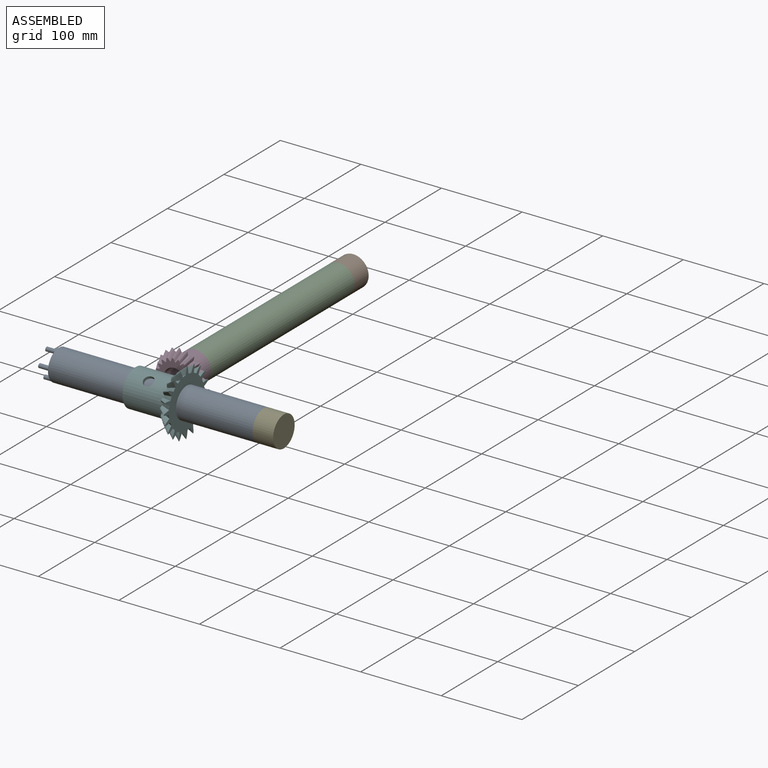
[diagram: assembled view]
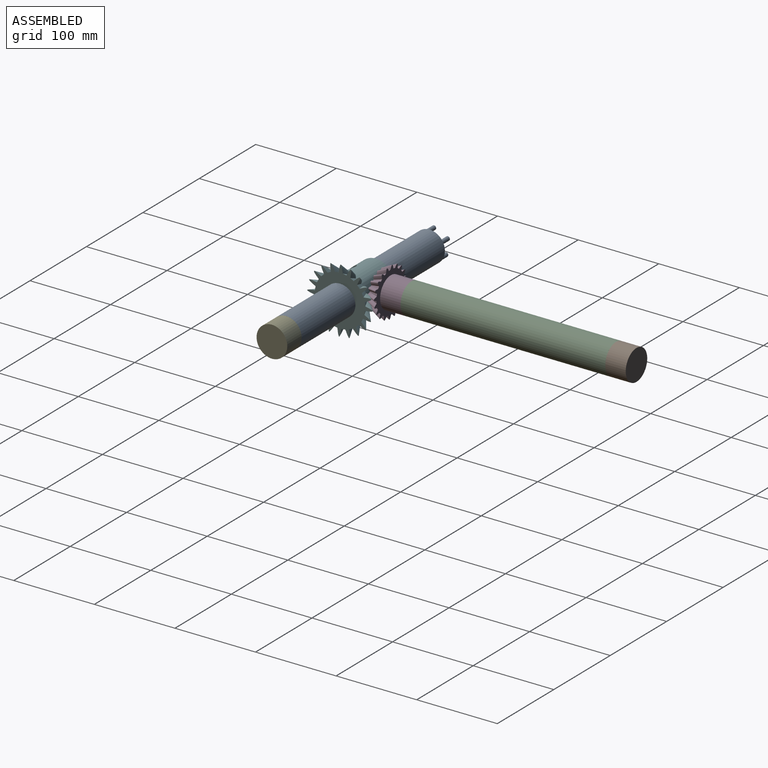
[diagram: assembled view, second angle]
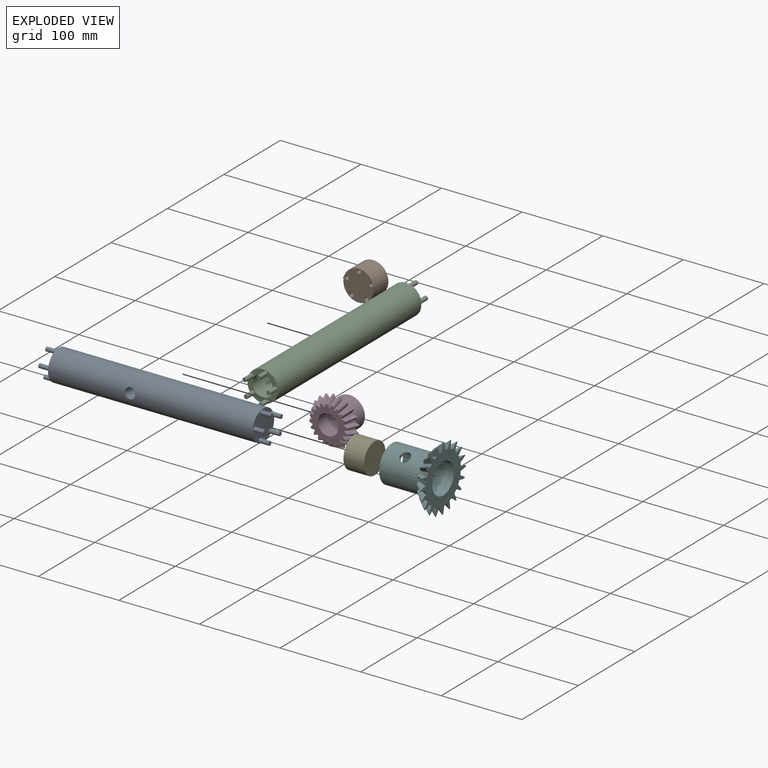
[diagram: exploded view]
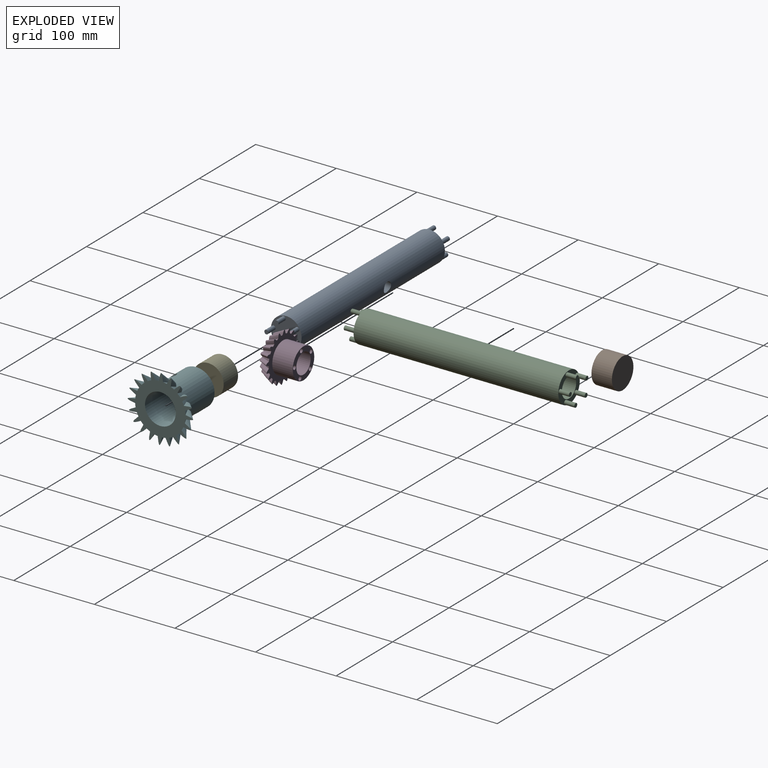
[diagram: exploded view, second angle]
ASSEMBLY  parts=6 mates=4
PART A: 24 faces, bbox 279.4x38.1x38.1 mm
  f0: cylinder r=19.05mm len=254mm, axis (-1,0,0), area 30145.4mm2, adj f1,f2,f23
  f1: plane 38.1x38.1mm, normal (1,0,0), area 1038.8mm2, adj f0,f3,f5,f7,f9,f11
  f2: plane 38.1x38.1mm, normal (-1,0,0), area 1038.8mm2, adj f0,f13,f15,f17,f19,f21
  f3: cylinder r=2.54mm len=12.7mm, axis (-1,0,0), area 202.7mm2, adj f1,f4
  f4: plane 5.08x5.08mm, normal (1,0,0), area 20.3mm2, adj f3
  f5: cylinder r=2.54mm len=12.7mm, axis (-1,0,0), area 202.7mm2, adj f1,f6
  f6: plane 5.08x5.08mm, normal (1,0,0), area 20.3mm2, adj f5
  f7: cylinder r=2.54mm len=12.7mm, axis (-1,0,0), area 202.7mm2, adj f1,f8
  f8: plane 5.08x5.08mm, normal (1,0,0), area 20.3mm2, adj f7
  f9: cylinder r=2.54mm len=12.7mm, axis (-1,0,0), area 202.7mm2, adj f1,f10
  f10: plane 5.08x5.08mm, normal (1,0,0), area 20.3mm2, adj f9
  f11: cylinder r=2.54mm len=12.7mm, axis (-1,0,0), area 202.7mm2, adj f1,f12
  f12: plane 5.08x5.08mm, normal (1,0,0), area 20.3mm2, adj f11
  f13: cylinder r=2.54mm len=12.7mm, axis (1,0,0), area 202.7mm2, adj f2,f14
  f14: plane 5.08x5.08mm, normal (-1,0,0), area 20.3mm2, adj f13
  f15: cylinder r=2.54mm len=12.7mm, axis (1,0,0), area 202.7mm2, adj f2,f16
  f16: plane 5.08x5.08mm, normal (-1,0,0), area 20.3mm2, adj f15
  f17: cylinder r=2.54mm len=12.7mm, axis (1,0,0), area 202.7mm2, adj f2,f18
  f18: plane 5.08x5.08mm, normal (-1,0,0), area 20.3mm2, adj f17
  f19: cylinder r=2.54mm len=12.7mm, axis (1,0,0), area 202.7mm2, adj f2,f20
  f20: plane 5.08x5.08mm, normal (-1,0,0), area 20.3mm2, adj f19
  f21: cylinder r=2.54mm len=12.7mm, axis (1,0,0), area 202.7mm2, adj f2,f22
  f22: plane 5.08x5.08mm, normal (-1,0,0), area 20.3mm2, adj f21
  f23: cylinder r=6.35mm len=38.1mm, axis (0,0,1), area 1476.9mm2, adj f0
PART B: 13 faces, bbox 25.4x38.1x38.1 mm
  f0: cylinder r=2.54mm len=12.7mm, axis (-1,0,0), area 202.7mm2, adj f6,f7
  f1: cylinder r=2.54mm len=12.7mm, axis (-1,0,0), area 202.7mm2, adj f6,f8
  f2: cylinder r=2.54mm len=12.7mm, axis (-1,0,0), area 202.7mm2, adj f6,f9
  f3: cylinder r=2.54mm len=12.7mm, axis (-1,0,0), area 202.7mm2, adj f6,f10
  f4: cylinder r=2.54mm len=12.7mm, axis (-1,0,0), area 202.7mm2, adj f6,f11
  f5: cylinder r=19.05mm len=38.1mm, axis (-1,0,0), area 3040.2mm2, adj f6,f12
  f6: plane 38.1x38.1mm, normal (-1,0,0), area 1038.8mm2, adj f0,f1,f2,f3,f4,f5
  f7: plane 5.08x5.08mm, normal (-1,0,0), area 20.3mm2, adj f0
  f8: plane 5.08x5.08mm, normal (-1,0,0), area 20.3mm2, adj f1
  f9: plane 5.08x5.08mm, normal (-1,0,0), area 20.3mm2, adj f2
  f10: plane 5.08x5.08mm, normal (-1,0,0), area 20.3mm2, adj f3
  f11: plane 5.08x5.08mm, normal (-1,0,0), area 20.3mm2, adj f4
  f12: plane 38.1x38.1mm, normal (1,0,0), area 1140.1mm2, adj f5
PART C: 24 faces, bbox 38.1x279.4x38.1 mm
  f0: cylinder r=12.7mm len=254mm, axis (0,1,0), area 20268.3mm2, adj f2,f3
  f1: cylinder r=19.05mm len=254mm, axis (0,1,0), area 30402.4mm2, adj f2,f3
  f2: plane 38.1x38.1mm, normal (0,-1,0), area 532mm2, adj f0,f1,f14,f16,f18,f20,f22
  f3: plane 38.1x38.1mm, normal (0,1,0), area 532mm2, adj f0,f1,f4,f6,f8,f10,f12
  f4: cylinder r=2.54mm len=12.7mm, axis (0,-1,0), area 202.7mm2, adj f3,f5
  f5: plane 5.08x5.08mm, normal (0,1,0), area 20.3mm2, adj f4
  f6: cylinder r=2.54mm len=12.7mm, axis (0,-1,0), area 202.7mm2, adj f3,f7
  f7: plane 5.08x5.08mm, normal (0,1,0), area 20.3mm2, adj f6
  f8: cylinder r=2.54mm len=12.7mm, axis (0,-1,0), area 202.7mm2, adj f3,f9
  f9: plane 5.08x5.08mm, normal (0,1,0), area 20.3mm2, adj f8
  f10: cylinder r=2.54mm len=12.7mm, axis (0,-1,0), area 202.7mm2, adj f3,f11
  f11: plane 5.08x5.08mm, normal (0,1,0), area 20.3mm2, adj f10
  f12: cylinder r=2.54mm len=12.7mm, axis (0,-1,0), area 202.7mm2, adj f3,f13
  f13: plane 5.08x5.08mm, normal (0,1,0), area 20.3mm2, adj f12
  f14: cylinder r=2.54mm len=12.7mm, axis (0,1,0), area 202.7mm2, adj f2,f15
  f15: plane 5.08x5.08mm, normal (0,-1,0), area 20.3mm2, adj f14
  f16: cylinder r=2.54mm len=12.7mm, axis (0,1,0), area 202.7mm2, adj f2,f17
  f17: plane 5.08x5.08mm, normal (0,-1,0), area 20.3mm2, adj f16
  f18: cylinder r=2.54mm len=12.7mm, axis (0,1,0), area 202.7mm2, adj f2,f19
  f19: plane 5.08x5.08mm, normal (0,-1,0), area 20.3mm2, adj f18
  f20: cylinder r=2.54mm len=12.7mm, axis (0,1,0), area 202.7mm2, adj f2,f21
  f21: plane 5.08x5.08mm, normal (0,-1,0), area 20.3mm2, adj f20
  f22: cylinder r=2.54mm len=12.7mm, axis (0,1,0), area 202.7mm2, adj f2,f23
  f23: plane 5.08x5.08mm, normal (0,-1,0), area 20.3mm2, adj f22
PART D: 55 faces, bbox 63.5x38.1x63.5 mm
  f0: cone r=25.4mm half-angle=25deg, axis (0,1,0), area 26.6mm2, adj f32,f33,f34,f53
  f1: cone r=25.4mm half-angle=25deg, axis (0,1,0), area 26.6mm2, adj f32,f33,f52,f53
  f2: cone r=25.4mm half-angle=25deg, axis (0,1,0), area 26.6mm2, adj f32,f33,f51,f52
  f3: cone r=25.4mm half-angle=25deg, axis (0,1,0), area 26.6mm2, adj f32,f33,f50,f51
  f4: cone r=25.4mm half-angle=25deg, axis (0,1,0), area 26.6mm2, adj f32,f33,f49,f50
  f5: cone r=25.4mm half-angle=25deg, axis (0,1,0), area 26.6mm2, adj f32,f33,f48,f49
  f6: cone r=25.4mm half-angle=25deg, axis (0,1,0), area 26.6mm2, adj f32,f33,f47,f48
  f7: cone r=25.4mm half-angle=25deg, axis (0,1,0), area 26.6mm2, adj f32,f33,f46,f47
  f8: cone r=25.4mm half-angle=25deg, axis (0,1,0), area 26.6mm2, adj f32,f33,f45,f46
  f9: cone r=25.4mm half-angle=25deg, axis (0,1,0), area 26.6mm2, adj f32,f33,f44,f45
  f10: cone r=25.4mm half-angle=25deg, axis (0,1,0), area 26.6mm2, adj f32,f33,f43,f44
  f11: cone r=25.4mm half-angle=25deg, axis (0,1,0), area 26.6mm2, adj f32,f33,f42,f43
  f12: cone r=25.4mm half-angle=25deg, axis (0,1,0), area 26.6mm2, adj f32,f33,f41,f42
  f13: cone r=25.4mm half-angle=25deg, axis (0,1,0), area 26.6mm2, adj f32,f33,f40,f41
  f14: cone r=25.4mm half-angle=25deg, axis (0,1,0), area 26.6mm2, adj f32,f33,f39,f40
  f15: cone r=25.4mm half-angle=25deg, axis (0,1,0), area 26.6mm2, adj f32,f33,f38,f39
  f16: cone r=25.4mm half-angle=25deg, axis (0,1,0), area 26.6mm2, adj f32,f33,f37,f38
  f17: cone r=25.4mm half-angle=25deg, axis (0,1,0), area 26.6mm2, adj f32,f33,f36,f37
  f18: cone r=25.4mm half-angle=25deg, axis (0,1,0), area 26.6mm2, adj f32,f33,f35,f36
  f19: cone r=25.4mm half-angle=25deg, axis (0,1,0), area 26.6mm2, adj f32,f33,f34,f35
  f20: cylinder r=19.05mm len=38.1mm, axis (0,1,0), area 3040.2mm2, adj f21,f33
  f21: plane 38.1x38.1mm, normal (0,1,0), area 532mm2, adj f20,f22,f24,f26,f28,f30,f54
  f22: cylinder r=2.54mm len=12.7mm, axis (0,1,0), area 202.7mm2, adj f21,f23
  f23: plane 5.08x5.08mm, normal (0,1,0), area 20.3mm2, adj f22
  f24: cylinder r=2.54mm len=12.7mm, axis (0,1,0), area 202.7mm2, adj f21,f25
  f25: plane 5.08x5.08mm, normal (0,1,0), area 20.3mm2, adj f24
  f26: cylinder r=2.54mm len=12.7mm, axis (0,1,0), area 202.7mm2, adj f21,f27
  f27: plane 5.08x5.08mm, normal (0,1,0), area 20.3mm2, adj f26
  f28: cylinder r=2.54mm len=12.7mm, axis (0,1,0), area 202.7mm2, adj f21,f29
  f29: plane 5.08x5.08mm, normal (0,1,0), area 20.3mm2, adj f28
  f30: cylinder r=2.54mm len=12.7mm, axis (0,1,0), area 202.7mm2, adj f21,f31
  f31: plane 5.08x5.08mm, normal (0,1,0), area 20.3mm2, adj f30
  f32: plane 49.88x49.88mm, normal (0,-1,0), area 950.8mm2, adj f0,f1,f2,f3,f4,f5,f6,f7
  f33: plane 63.52x63.52mm, normal (0,1,0), area 1197.2mm2, adj f0,f1,f2,f3,f4,f5,f6,f7
  f34: bspline ~12.7x12.25mm, area 139.2mm2, adj f0,f19,f32,f33
  f35: bspline ~12.7x12.7mm, area 139.2mm2, adj f18,f19,f32,f33
  f36: bspline ~12.7x11.9mm, area 139.2mm2, adj f17,f18,f32,f33
  f37: bspline ~12.7x11.9mm, area 139.2mm2, adj f16,f17,f32,f33
  f38: bspline ~12.7x12.7mm, area 139.2mm2, adj f15,f16,f32,f33
  f39: bspline ~12.7x12.25mm, area 139.2mm2, adj f14,f15,f32,f33
  f40: bspline ~12.7x12.7mm, area 139.2mm2, adj f13,f14,f32,f33
  f41: bspline ~12.7x11.9mm, area 139.2mm2, adj f12,f13,f32,f33
  f42: bspline ~12.7x11.9mm, area 139.2mm2, adj f11,f12,f32,f33
  f43: bspline ~12.7x12.7mm, area 139.2mm2, adj f10,f11,f32,f33
  f44: bspline ~12.7x12.25mm, area 139.2mm2, adj f9,f10,f32,f33
  f45: bspline ~12.7x12.7mm, area 139.2mm2, adj f8,f9,f32,f33
  f46: bspline ~12.7x11.9mm, area 139.2mm2, adj f7,f8,f32,f33
  f47: bspline ~12.7x11.9mm, area 139.2mm2, adj f6,f7,f32,f33
  f48: bspline ~12.7x12.7mm, area 139.2mm2, adj f5,f6,f32,f33
  f49: bspline ~12.7x12.25mm, area 139.2mm2, adj f4,f5,f32,f33
  f50: bspline ~12.7x12.7mm, area 139.2mm2, adj f3,f4,f32,f33
  f51: bspline ~12.7x11.9mm, area 139.2mm2, adj f2,f3,f32,f33
  f52: bspline ~12.7x11.9mm, area 139.2mm2, adj f1,f2,f32,f33
  f53: bspline ~12.7x12.7mm, area 139.2mm2, adj f0,f1,f32,f33
  f54: cylinder r=12.7mm len=38.1mm, axis (0,-1,0), area 3040.2mm2, adj f21,f32
PART E: same geometry as B
PART F: 47 faces, bbox 63.5x88.4x88.4 mm
  f0: cone r=25.4mm half-angle=25deg, axis (1,0,0), area 53mm2, adj f23,f24,f25,f44
  f1: cone r=25.4mm half-angle=25deg, axis (1,0,0), area 53mm2, adj f23,f24,f43,f44
  f2: cone r=25.4mm half-angle=25deg, axis (1,0,0), area 53mm2, adj f23,f24,f42,f43
  f3: cone r=25.4mm half-angle=25deg, axis (1,0,0), area 53mm2, adj f23,f24,f41,f42
  f4: cone r=25.4mm half-angle=25deg, axis (1,0,0), area 53mm2, adj f23,f24,f40,f41
  f5: cone r=25.4mm half-angle=25deg, axis (1,0,0), area 53mm2, adj f23,f24,f39,f40
  f6: cone r=25.4mm half-angle=25deg, axis (1,0,0), area 53mm2, adj f23,f24,f38,f39
  f7: cone r=25.4mm half-angle=25deg, axis (1,0,0), area 53mm2, adj f23,f24,f37,f38
  f8: cone r=25.4mm half-angle=25deg, axis (1,0,0), area 53mm2, adj f23,f24,f36,f37
  f9: cone r=25.4mm half-angle=25deg, axis (1,0,0), area 53mm2, adj f23,f24,f35,f36
  f10: cone r=25.4mm half-angle=25deg, axis (1,0,0), area 53mm2, adj f23,f24,f34,f35
  f11: cone r=25.4mm half-angle=25deg, axis (1,0,0), area 53mm2, adj f23,f24,f33,f34
  f12: cone r=25.4mm half-angle=25deg, axis (1,0,0), area 53mm2, adj f23,f24,f32,f33
  f13: cone r=25.4mm half-angle=25deg, axis (1,0,0), area 53mm2, adj f23,f24,f31,f32
  f14: cone r=25.4mm half-angle=25deg, axis (1,0,0), area 53mm2, adj f23,f24,f30,f31
  f15: cone r=25.4mm half-angle=25deg, axis (1,0,0), area 53mm2, adj f23,f24,f29,f30
  f16: cone r=25.4mm half-angle=25deg, axis (1,0,0), area 53mm2, adj f23,f24,f28,f29
  f17: cone r=25.4mm half-angle=25deg, axis (1,0,0), area 53mm2, adj f23,f24,f27,f28
  f18: cone r=25.4mm half-angle=25deg, axis (1,0,0), area 53mm2, adj f23,f24,f26,f27
  f19: cone r=25.4mm half-angle=25deg, axis (1,0,0), area 53mm2, adj f23,f24,f25,f26
  f20: cylinder r=19.05mm len=63.5mm, axis (1,0,0), area 7343.6mm2, adj f22,f24,f45,f46
  f21: cylinder r=22.86mm len=50.8mm, axis (1,0,0), area 7040.5mm2, adj f22,f23,f45,f46
  f22: plane 45.72x45.72mm, normal (-1,0,0), area 501.6mm2, adj f20,f21
  f23: plane 61.94x61.94mm, normal (-1,0,0), area 656.9mm2, adj f0,f1,f2,f3,f4,f5,f6,f7
  f24: plane 88.39x88.39mm, normal (1,0,0), area 2574.3mm2, adj f0,f1,f2,f3,f4,f5,f6,f7
  f25: bspline ~18.53x12.7mm, area 199.3mm2, adj f0,f19,f23,f24
  f26: bspline ~18.67x12.7mm, area 199.3mm2, adj f18,f19,f23,f24
  f27: bspline ~16.98x13.63mm, area 199.3mm2, adj f17,f18,f23,f24
  f28: bspline ~16.98x13.63mm, area 199.3mm2, adj f16,f17,f23,f24
  f29: bspline ~18.67x12.7mm, area 199.3mm2, adj f15,f16,f23,f24
  f30: bspline ~18.53x12.7mm, area 199.3mm2, adj f14,f15,f23,f24
  f31: bspline ~18.67x12.7mm, area 199.3mm2, adj f13,f14,f23,f24
  f32: bspline ~16.98x13.63mm, area 199.3mm2, adj f12,f13,f23,f24
  f33: bspline ~16.98x13.63mm, area 199.3mm2, adj f11,f12,f23,f24
  f34: bspline ~18.67x12.7mm, area 199.3mm2, adj f10,f11,f23,f24
  f35: bspline ~18.53x12.7mm, area 199.3mm2, adj f9,f10,f23,f24
  f36: bspline ~18.67x12.7mm, area 199.3mm2, adj f8,f9,f23,f24
  f37: bspline ~16.98x13.63mm, area 199.3mm2, adj f7,f8,f23,f24
  f38: bspline ~16.98x13.63mm, area 199.3mm2, adj f6,f7,f23,f24
  f39: bspline ~18.67x12.7mm, area 199.3mm2, adj f5,f6,f23,f24
  f40: bspline ~18.53x12.7mm, area 199.3mm2, adj f4,f5,f23,f24
  f41: bspline ~18.67x12.7mm, area 199.3mm2, adj f3,f4,f23,f24
  f42: bspline ~16.98x13.63mm, area 199.3mm2, adj f2,f3,f23,f24
  f43: bspline ~16.98x13.63mm, area 199.3mm2, adj f1,f2,f23,f24
  f44: bspline ~18.67x12.7mm, area 199.3mm2, adj f0,f1,f23,f24
  f45: cylinder r=6.35mm len=12.7mm, axis (0,0,1), area 152mm2, adj f20,f21
  f46: cylinder r=6.35mm len=12.7mm, axis (0,0,1), area 152mm2, adj f20,f21
PLACE A rot(axis=(1,0,0),83.8deg) t=(11.02,-255.34,-139.48)mm
PLACE B rot(axis=(0,0,1),90deg) t=(8.7,63.23,-132.58)mm fixed
PLACE C rot(axis=(0,-1,0),130.7deg) t=(8.7,63.23,-132.58)mm
PLACE D rot(axis=(0,-1,0),130.7deg) t=(8.7,-190.77,-132.58)mm
PLACE E rot(axis=(1,0,0),80.2deg) t=(138.02,-255.34,-139.48)mm fixed
PLACE F rot(axis=(1,0,0),34.5deg) t=(30.07,-255.34,-139.48)mm
MATE revolute B.f5 <-> C.f0  axis (0,-1,0) through (8.7,63.23,-132.58)mm
MATE revolute E.f5 <-> A.f0  axis (-1,0,0) through (138.02,-255.34,-139.48)mm
MATE revolute F.f20 <-> A.f0  axis (1,0,0) through (11.02,-255.34,-139.48)mm
MATE fastened C.f4 <-> D.f30  axis (0,-1,0) through (-3.33,-203.47,-142.93)mm
